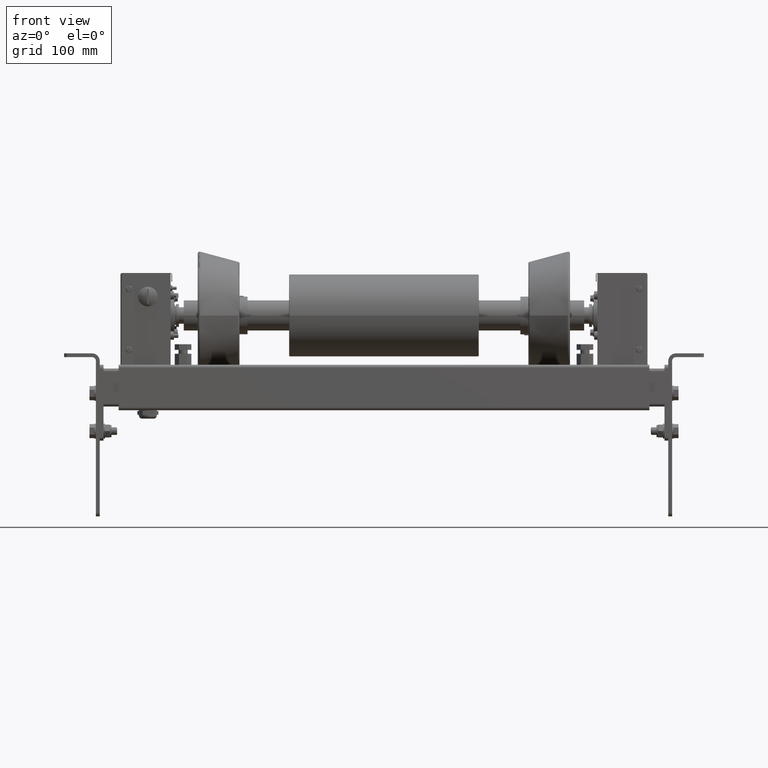
[diagram: clean part render]
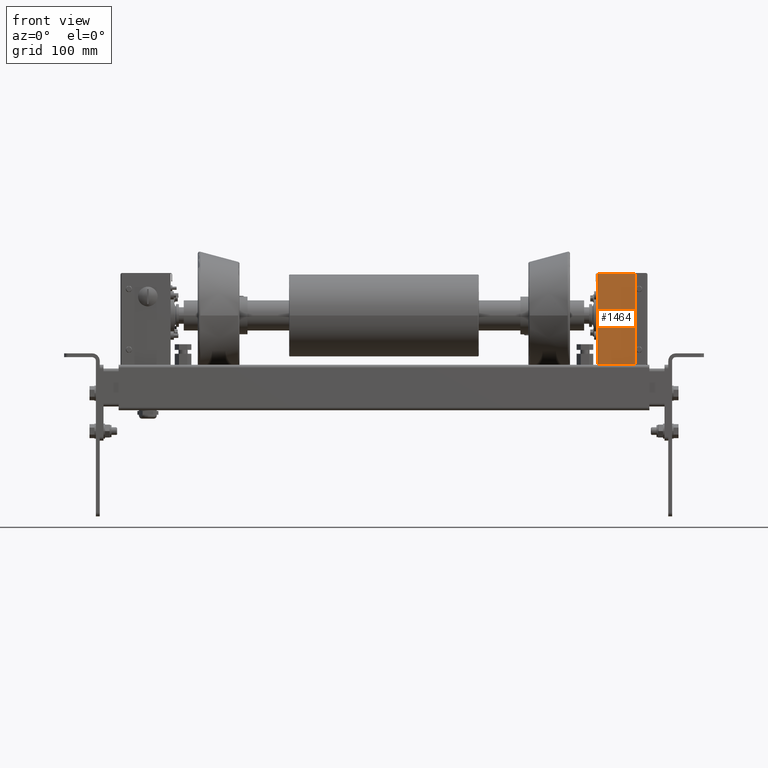
[diagram: same view with one face highlighted and labeled with its STEP entity id]
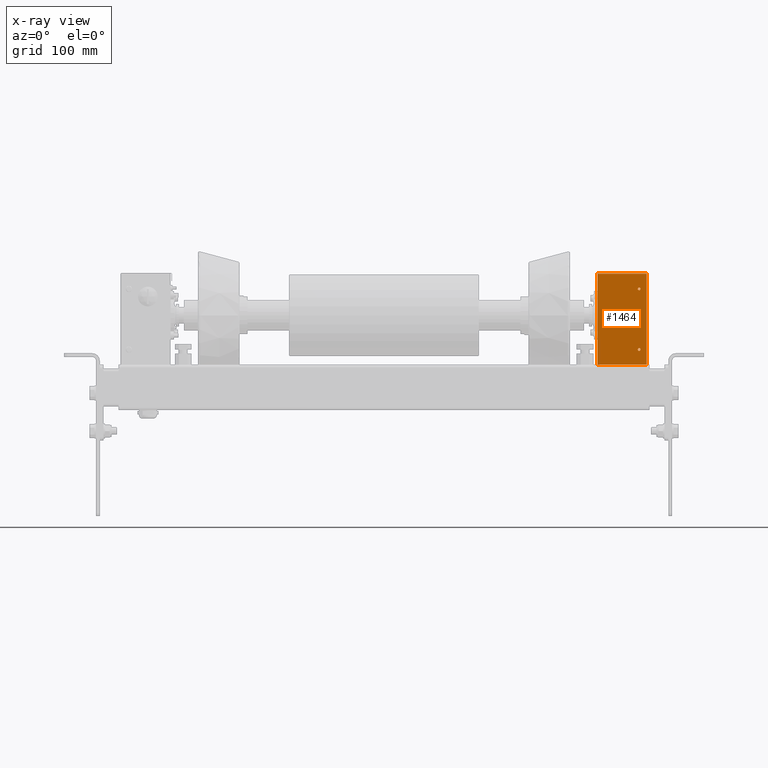
[diagram: x-ray of the same camera — body ghosted, the highlighted face saturated]
A machine part, front view. The second image highlights one B-rep face of the part: STEP entity #1464.
The next image is the same camera in x-ray: the body ghosted, the highlighted face saturated — about 0% of this face is hidden behind the body in this view.
In plain terms, the highlighted planar face has unit normal (0, -1, 0).
Its self-contained STEP definition (entity closure, byte-faithful):
#384=CARTESIAN_POINT('',(-150.000000000000910,65.000000000000227,55.250000000000000));
#385=VERTEX_POINT('',#384);
#394=CARTESIAN_POINT('',(-150.000000000000910,65.000000000000227,51.750000000000000));
#395=VERTEX_POINT('',#394);
#396=CARTESIAN_POINT('',(-150.000000000000910,65.000000000000227,53.500000000000000));
#397=DIRECTION('',(1.0,0.0,0.0));
#398=DIRECTION('',(0.0,0.0,1.0));
#399=AXIS2_PLACEMENT_3D('',#396,#397,#398);
#400=CIRCLE('',#399,1.750000000000000);
#401=EDGE_CURVE('',#395,#385,#400,.T.);
#468=CARTESIAN_POINT('',(-150.000000000000940,-14.999999999999773,55.250000000000000));
#469=VERTEX_POINT('',#468);
#478=CARTESIAN_POINT('',(-150.000000000000880,-14.999999999999773,51.750000000000000));
#479=VERTEX_POINT('',#478);
#480=CARTESIAN_POINT('',(-150.000000000000880,-14.999999999999773,53.500000000000000));
#481=DIRECTION('',(1.0,0.0,0.0));
#482=DIRECTION('',(0.0,0.0,1.0));
#483=AXIS2_PLACEMENT_3D('',#480,#481,#482);
#484=CIRCLE('',#483,1.750000000000000);
#485=EDGE_CURVE('',#479,#469,#484,.T.);
#705=CARTESIAN_POINT('',(-150.000000000000880,-14.999999999999773,53.500000000000000));
#706=DIRECTION('',(1.0,0.0,0.0));
#707=DIRECTION('',(0.0,0.0,1.0));
#708=AXIS2_PLACEMENT_3D('',#705,#706,#707);
#709=CIRCLE('',#708,1.750000000000000);
#710=EDGE_CURVE('',#469,#479,#709,.T.);
#753=CARTESIAN_POINT('',(-150.000000000000910,65.000000000000227,53.500000000000000));
#754=DIRECTION('',(1.0,0.0,0.0));
#755=DIRECTION('',(0.0,0.0,1.0));
#756=AXIS2_PLACEMENT_3D('',#753,#754,#755);
#757=CIRCLE('',#756,1.750000000000000);
#758=EDGE_CURVE('',#385,#395,#757,.T.);
#919=CARTESIAN_POINT('',(-150.000000000000910,-34.999999999999773,63.500000000000000));
#920=VERTEX_POINT('',#919);
#921=CARTESIAN_POINT('',(-150.000000000000910,85.000000000000227,63.500000000000000));
#922=VERTEX_POINT('',#921);
#923=CARTESIAN_POINT('',(-150.000000000000910,-34.999999999999773,63.500000000000000));
#924=DIRECTION('',(0.0,1.0,0.0));
#925=VECTOR('',#924,120.0);
#926=LINE('',#923,#925);
#927=EDGE_CURVE('',#920,#922,#926,.T.);
#1063=CARTESIAN_POINT('',(-150.000000000000910,85.000000000000227,-1.500000000000000));
#1064=VERTEX_POINT('',#1063);
#1071=CARTESIAN_POINT('',(-150.000000000000910,85.000000000000227,-1.500000000000000));
#1072=DIRECTION('',(0.0,0.0,1.0));
#1073=VECTOR('',#1072,65.0);
#1074=LINE('',#1071,#1073);
#1075=EDGE_CURVE('',#1064,#922,#1074,.T.);
#1096=CARTESIAN_POINT('',(-150.000000000000910,-34.999999999999773,-1.500000000000000));
#1097=VERTEX_POINT('',#1096);
#1104=CARTESIAN_POINT('',(-150.000000000000910,85.000000000000227,-1.500000000000000));
#1105=DIRECTION('',(0.0,-1.0,0.0));
#1106=VECTOR('',#1105,120.0);
#1107=LINE('',#1104,#1106);
#1108=EDGE_CURVE('',#1064,#1097,#1107,.T.);
#1436=CARTESIAN_POINT('',(-150.000000000000910,-34.999999999999773,-1.500000000000000));
#1437=DIRECTION('',(0.0,0.0,1.0));
#1438=VECTOR('',#1437,65.0);
#1439=LINE('',#1436,#1438);
#1440=EDGE_CURVE('',#1097,#920,#1439,.T.);
#1445=CARTESIAN_POINT('',(-150.000000000000910,-94.999999999999773,-1.500000000000000));
#1446=DIRECTION('',(-1.0,0.0,0.0));
#1447=DIRECTION('',(0.0,0.0,1.0));
#1448=AXIS2_PLACEMENT_3D('',#1445,#1446,#1447);
#1449=PLANE('',#1448);
#1450=ORIENTED_EDGE('',*,*,#1075,.F.);
#1451=ORIENTED_EDGE('',*,*,#1108,.T.);
#1452=ORIENTED_EDGE('',*,*,#1440,.T.);
#1453=ORIENTED_EDGE('',*,*,#927,.T.);
#1454=EDGE_LOOP('',(#1450,#1451,#1452,#1453));
#1455=FACE_OUTER_BOUND('',#1454,.T.);
#1456=ORIENTED_EDGE('',*,*,#710,.T.);
#1457=ORIENTED_EDGE('',*,*,#485,.T.);
#1458=EDGE_LOOP('',(#1456,#1457));
#1459=FACE_BOUND('',#1458,.T.);
#1460=ORIENTED_EDGE('',*,*,#758,.T.);
#1461=ORIENTED_EDGE('',*,*,#401,.T.);
#1462=EDGE_LOOP('',(#1460,#1461));
#1463=FACE_BOUND('',#1462,.T.);
#1464=ADVANCED_FACE('',(#1455,#1459,#1463),#1449,.T.);